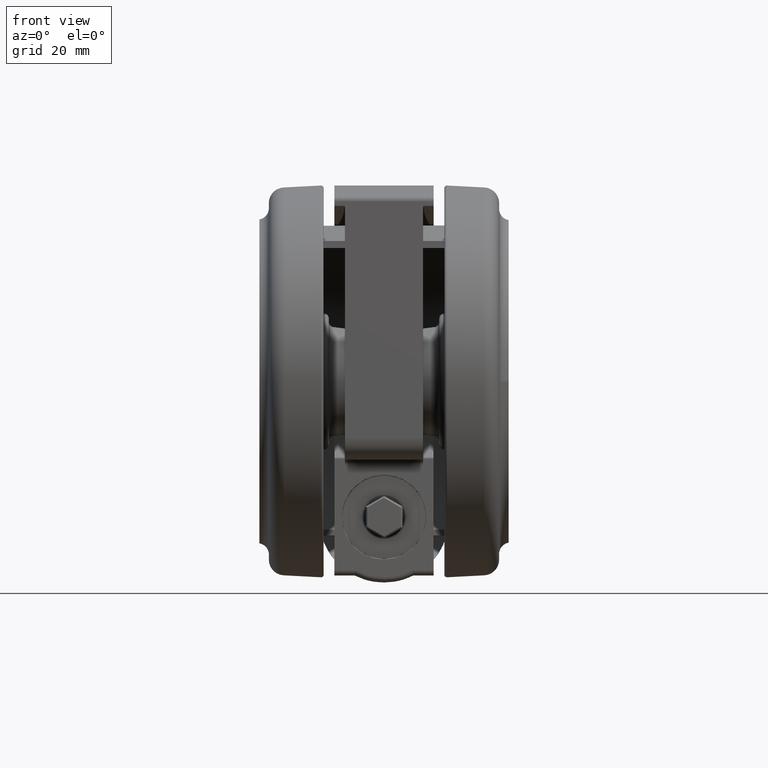
[diagram: clean part render]
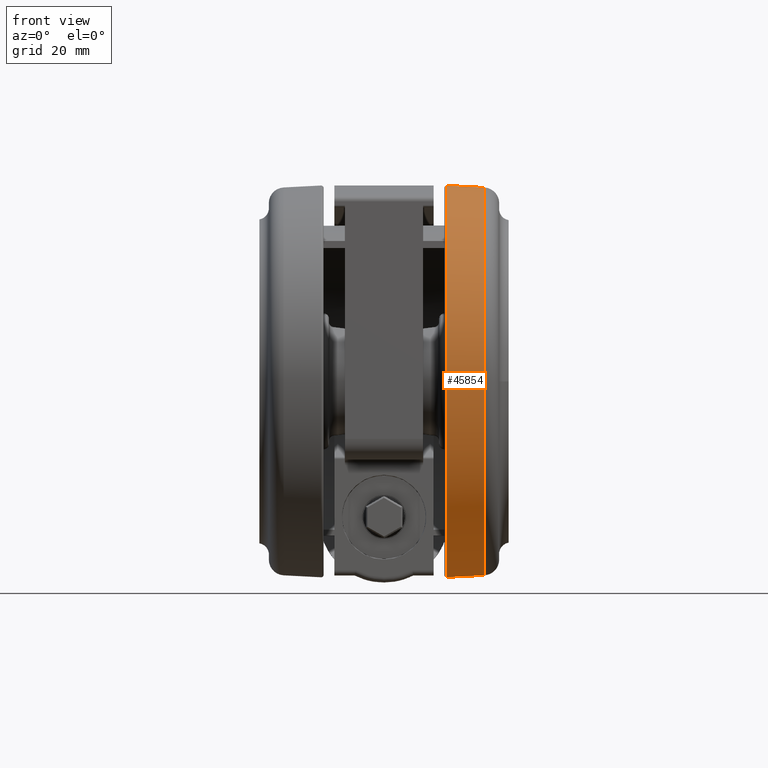
[diagram: same view with one face highlighted and labeled with its STEP entity id]
A machine part, front view. The second image highlights one B-rep face of the part: STEP entity #45854.
In plain terms, the highlighted conical surface has half-angle 3 deg.
Its self-contained STEP definition (entity closure, byte-faithful):
#1162 = VERTEX_POINT ( 'NONE', #56375 ) ;
#1195 = ORIENTED_EDGE ( 'NONE', *, *, #28185, .T. ) ;
#2446 = DIRECTION ( 'NONE',  ( -1.778178278575397100E-016, 0.05233595624293729800, -0.9986295347545742800 ) ) ;
#2779 = EDGE_CURVE ( 'NONE', #35869, #1162, #55326, .T. ) ;
#4657 = CONICAL_SURFACE ( 'NONE', #32627, 37.12628851691039200, 0.05235987755982334000 ) ;
#7217 = EDGE_LOOP ( 'NONE', ( #32492, #58057, #25114, #1195 ) ) ;
#7430 = DIRECTION ( 'NONE',  ( 0.0000000000000000000, 0.0000000000000000000, 1.000000000000000000 ) ) ;
#7662 = VECTOR ( 'NONE', #2446, 1000.000000000000100 ) ;
#12249 = CARTESIAN_POINT ( 'NONE',  ( -1.215944579745338400E-013, 37.12628851691037800, -4.642992131271287600 ) ) ;
#14560 = CARTESIAN_POINT ( 'NONE',  ( 0.0000000000000000000, -1.387778780781445700E-014, -4.642992131271287600 ) ) ;
#19068 = DIRECTION ( 'NONE',  ( 0.0000000000000000000, 0.0000000000000000000, -1.000000000000000000 ) ) ;
#22195 = DIRECTION ( 'NONE',  ( 0.0000000000000000000, 0.0000000000000000000, 1.000000000000000000 ) ) ;
#25114 = ORIENTED_EDGE ( 'NONE', *, *, #56556, .T. ) ;
#26345 = VECTOR ( 'NONE', #58165, 1000.000000000000100 ) ;
#27420 = AXIS2_PLACEMENT_3D ( 'NONE', #48954, #22195, #53510 ) ;
#28185 = EDGE_CURVE ( 'NONE', #51014, #1162, #33167, .T. ) ;
#29846 = FACE_OUTER_BOUND ( 'NONE', #7217, .T. ) ;
#32492 = ORIENTED_EDGE ( 'NONE', *, *, #2779, .F. ) ;
#32627 = AXIS2_PLACEMENT_3D ( 'NONE', #14560, #19068, #41376 ) ;
#33167 = CIRCLE ( 'NONE', #41365, 37.50000000000000000 ) ;
#33808 = CARTESIAN_POINT ( 'NONE',  ( 1.228184220991578900E-013, -37.50000000000001400, -11.77383202187863600 ) ) ;
#34233 = CARTESIAN_POINT ( 'NONE',  ( 0.0000000000000000000, -1.387778780781445700E-014, -11.77383202187863600 ) ) ;
#35869 = VERTEX_POINT ( 'NONE', #12249 ) ;
#38776 = DIRECTION ( 'NONE',  ( -3.275157922644210600E-015, 1.000000000000000000, 0.0000000000000000000 ) ) ;
#41365 = AXIS2_PLACEMENT_3D ( 'NONE', #34233, #7430, #38776 ) ;
#41376 = DIRECTION ( 'NONE',  ( 3.275157922644210200E-015, -1.000000000000000000, 0.0000000000000000000 ) ) ;
#42645 = VERTEX_POINT ( 'NONE', #48297 ) ;
#43515 = EDGE_CURVE ( 'NONE', #42645, #35869, #47584, .T. ) ;
#45854 = ADVANCED_FACE ( 'NONE', ( #29846 ), #4657, .T. ) ;
#47584 = CIRCLE ( 'NONE', #27420, 37.12628851691039200 ) ;
#48297 = CARTESIAN_POINT ( 'NONE',  ( 1.170477989348882900E-013, -37.12628851691040700, -4.642992131271287600 ) ) ;
#48954 = CARTESIAN_POINT ( 'NONE',  ( 0.0000000000000000000, -1.387778780781445700E-014, -4.642992131271287600 ) ) ;
#50110 = LINE ( 'NONE', #53650, #26345 ) ;
#51014 = VERTEX_POINT ( 'NONE', #33808 ) ;
#51573 = CARTESIAN_POINT ( 'NONE',  ( -1.261411170141793500E-013, 37.12628851691037800, -4.642992131271287600 ) ) ;
#53510 = DIRECTION ( 'NONE',  ( -3.275157922644210200E-015, 1.000000000000000000, 0.0000000000000000000 ) ) ;
#53650 = CARTESIAN_POINT ( 'NONE',  ( 1.215944579745338400E-013, -37.12628851691040700, -4.642992131271287600 ) ) ;
#55326 = LINE ( 'NONE', #51573, #7662 ) ;
#56375 = CARTESIAN_POINT ( 'NONE',  ( -1.274108475959604500E-013, 37.49999999999998600, -11.77383202187863600 ) ) ;
#56556 = EDGE_CURVE ( 'NONE', #42645, #51014, #50110, .T. ) ;
#58057 = ORIENTED_EDGE ( 'NONE', *, *, #43515, .F. ) ;
#58165 = DIRECTION ( 'NONE',  ( 1.714085217282168000E-016, -0.05233595624293729800, -0.9986295347545742800 ) ) ;